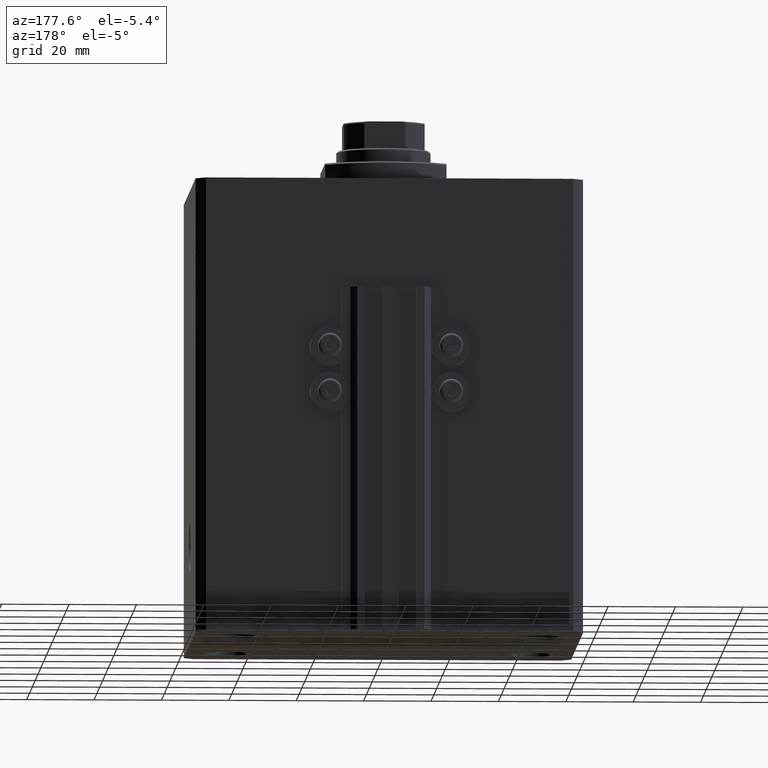
[diagram: clean part render]
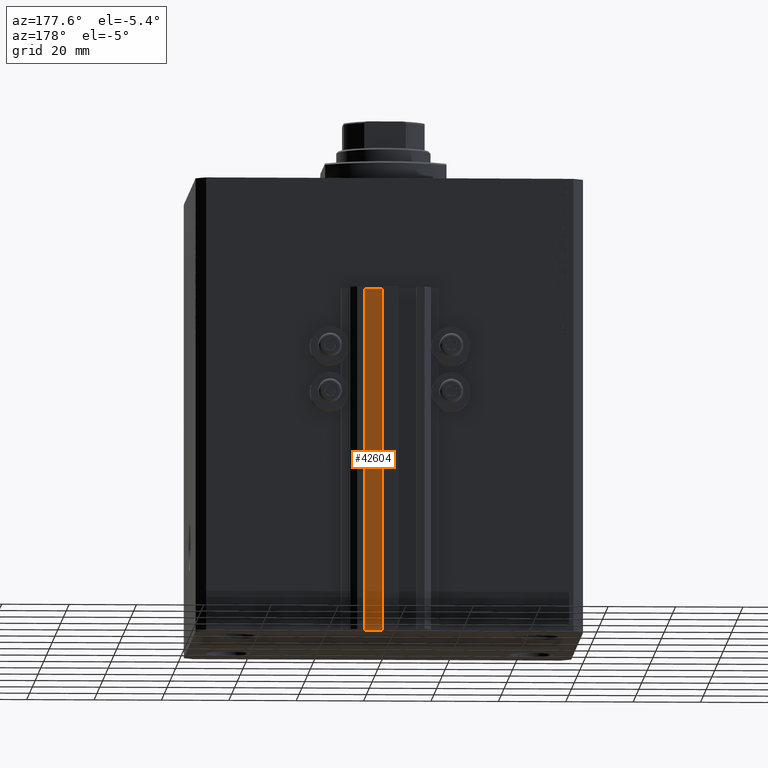
[diagram: same view with one face highlighted and labeled with its STEP entity id]
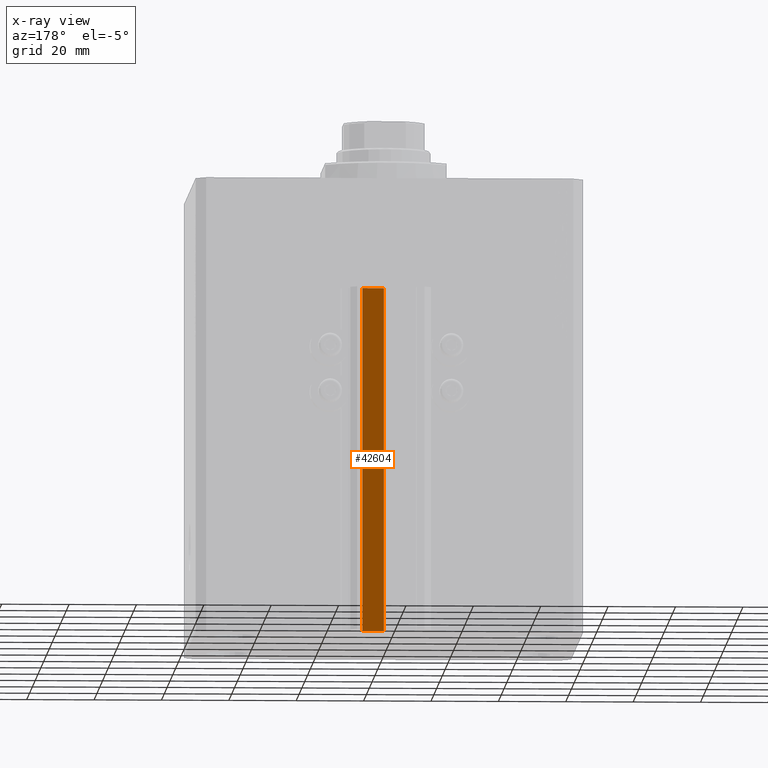
[diagram: x-ray of the same camera — body ghosted, the highlighted face saturated]
A machine part, auxiliary view. The second image highlights one B-rep face of the part: STEP entity #42604.
The next image is the same camera in x-ray: the body ghosted, the highlighted face saturated — about 0% of this face is hidden behind the body in this view.
In plain terms, the highlighted planar face has unit normal (0, 1, 0).
Its self-contained STEP definition (entity closure, byte-faithful):
#302 = DIRECTION ( 'NONE',  ( 0.000000000000000000, 0.000000000000000000, 1.000000000000000000 ) ) ;
#535 = VERTEX_POINT ( 'NONE', #46647 ) ;
#1976 = VECTOR ( 'NONE', #8590, 1000.000000000000000 ) ;
#2638 = ORIENTED_EDGE ( 'NONE', *, *, #27168, .T. ) ;
#2783 = CARTESIAN_POINT ( 'NONE',  ( 8.199999999999999289, 46.99999999999998579, -135.0000000000000000 ) ) ;
#4495 = DIRECTION ( 'NONE',  ( 0.000000000000000000, 1.000000000000000000, -0.000000000000000000 ) ) ;
#4736 = CARTESIAN_POINT ( 'NONE',  ( 8.199999999999999289, 46.99999999999998579, -135.0000000000000000 ) ) ;
#8590 = DIRECTION ( 'NONE',  ( -1.000000000000000000, 0.000000000000000000, 0.000000000000000000 ) ) ;
#9559 = EDGE_LOOP ( 'NONE', ( #37492, #16888, #2638, #23109 ) ) ;
#9598 = CARTESIAN_POINT ( 'NONE',  ( 8.199999999999999289, 46.99999999999998579, -135.0000000000000000 ) ) ;
#12324 = AXIS2_PLACEMENT_3D ( 'NONE', #4736, #4495, #19310 ) ;
#12414 = LINE ( 'NONE', #44869, #1976 ) ;
#16888 = ORIENTED_EDGE ( 'NONE', *, *, #44851, .F. ) ;
#19310 = DIRECTION ( 'NONE',  ( 0.000000000000000000, 0.000000000000000000, 1.000000000000000000 ) ) ;
#19566 = VECTOR ( 'NONE', #31338, 1000.000000000000000 ) ;
#20354 = LINE ( 'NONE', #9598, #19566 ) ;
#21971 = VERTEX_POINT ( 'NONE', #32395 ) ;
#23109 = ORIENTED_EDGE ( 'NONE', *, *, #45819, .T. ) ;
#23127 = LINE ( 'NONE', #30976, #34435 ) ;
#25369 = EDGE_CURVE ( 'NONE', #40691, #535, #12414, .T. ) ;
#27168 = EDGE_CURVE ( 'NONE', #30622, #21971, #20354, .T. ) ;
#30622 = VERTEX_POINT ( 'NONE', #2783 ) ;
#30976 = CARTESIAN_POINT ( 'NONE',  ( 8.199999999999999289, 46.99999999999998579, -135.0000000000000000 ) ) ;
#31338 = DIRECTION ( 'NONE',  ( -1.000000000000000000, 0.000000000000000000, 0.000000000000000000 ) ) ;
#32395 = CARTESIAN_POINT ( 'NONE',  ( 1.800000000000000933, 46.99999999999998579, -135.0000000000000000 ) ) ;
#32552 = LINE ( 'NONE', #33504, #35105 ) ;
#32769 = CARTESIAN_POINT ( 'NONE',  ( 8.199999999999999289, 46.99999999999998579, -33.00000000000000000 ) ) ;
#32906 = PLANE ( 'NONE',  #12324 ) ;
#33504 = CARTESIAN_POINT ( 'NONE',  ( 1.800000000000000933, 46.99999999999998579, -135.0000000000000000 ) ) ;
#34435 = VECTOR ( 'NONE', #41700, 1000.000000000000000 ) ;
#35105 = VECTOR ( 'NONE', #302, 1000.000000000000000 ) ;
#37436 = FACE_OUTER_BOUND ( 'NONE', #9559, .T. ) ;
#37492 = ORIENTED_EDGE ( 'NONE', *, *, #25369, .F. ) ;
#40691 = VERTEX_POINT ( 'NONE', #32769 ) ;
#41700 = DIRECTION ( 'NONE',  ( 0.000000000000000000, 0.000000000000000000, 1.000000000000000000 ) ) ;
#42604 = ADVANCED_FACE ( 'NONE', ( #37436 ), #32906, .T. ) ;
#44851 = EDGE_CURVE ( 'NONE', #30622, #40691, #23127, .T. ) ;
#44869 = CARTESIAN_POINT ( 'NONE',  ( 8.199999999999999289, 46.99999999999998579, -33.00000000000000000 ) ) ;
#45819 = EDGE_CURVE ( 'NONE', #21971, #535, #32552, .T. ) ;
#46647 = CARTESIAN_POINT ( 'NONE',  ( 1.800000000000000933, 46.99999999999998579, -33.00000000000000000 ) ) ;